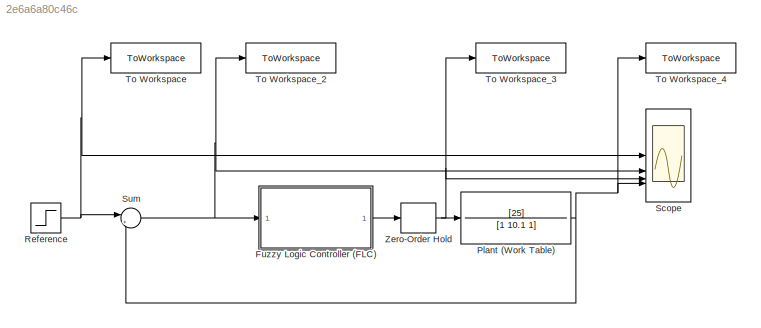
MODEL slx_2e6a6a80c46c
KIND model
CONFIG AbsTol = auto
CONFIG EnableMultiTasking = off
CONFIG FixedStep = auto
CONFIG MaxStep = auto
CONFIG MinStep = auto
CONFIG RelTol = 1e-3
CONFIG SampleTimeConstraint = Unconstrained
CONFIG SolverName = VariableStepAuto
CONFIG StartTime = 0.0
CONFIG StopTime = 10.0
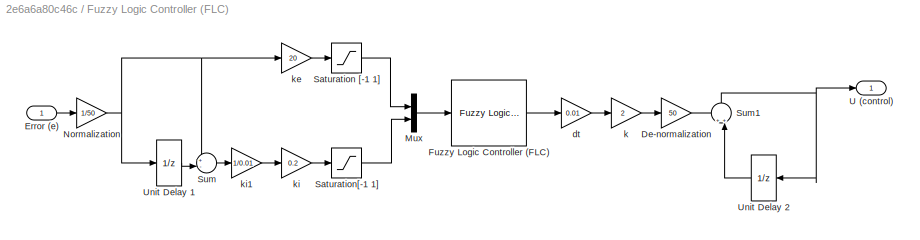
BLOCK [SubSystem] Fuzzy Logic Controller (FLC)
BLOCK [Outport] Fuzzy Logic Controller (FLC)/	U (control)
BLOCK [Gain] Fuzzy Logic Controller (FLC)/De-normalization
  Gain = 50
BLOCK [Inport] Fuzzy Logic Controller (FLC)/Error (e)
BLOCK [Reference] Fuzzy Logic Controller (FLC)/Fuzzy Logic Controller (FLC)  REF=fuzblock/Fuzzy Logic   (lib defined in mdl_858b3b3e7478)
Controller
  SourceBlock = fuzblock/Fuzzy Logic \nController
  SourceType = Fuzzy Inference System
BLOCK [Mux] Fuzzy Logic Controller (FLC)/Mux
  DisplayOption = bar
  Inputs = 2
BLOCK [Gain] Fuzzy Logic Controller (FLC)/Normalization
  Gain = 1/50
BLOCK [Saturate] Fuzzy Logic Controller (FLC)/Saturation [-1 1]
  LowerLimit = -1
  UpperLimit = 1
BLOCK [Saturate] Fuzzy Logic Controller (FLC)/Saturation[-1 1] 
  LowerLimit = -1
  UpperLimit = 1
BLOCK [Sum] Fuzzy Logic Controller (FLC)/Sum
  Inputs = +-|
BLOCK [Sum] Fuzzy Logic Controller (FLC)/Sum1
  Inputs = ++|
  NameLocation = right
BLOCK [UnitDelay] Fuzzy Logic Controller (FLC)/Unit Delay 1
  HasFrameUpgradeWarning = on
  SampleTime = 0.01
BLOCK [UnitDelay] Fuzzy Logic Controller (FLC)/Unit Delay 2
  HasFrameUpgradeWarning = on
  SampleTime = 0.01
BLOCK [Gain] Fuzzy Logic Controller (FLC)/dt
  Gain = 0.01
BLOCK [Gain] Fuzzy Logic Controller (FLC)/k
  Gain = 2
BLOCK [Gain] Fuzzy Logic Controller (FLC)/ke
  Gain = 20
BLOCK [Gain] Fuzzy Logic Controller (FLC)/ki
  Gain = 0.2
BLOCK [Gain] Fuzzy Logic Controller (FLC)/ki1
  Gain = 1/0.01
BLOCK [TransferFcn] Plant (Work Table)
  Denominator = [1 10.1 1]
  Numerator = [25]
BLOCK [Step] Reference
  After = 50
  SampleTime = 0
BLOCK [Scope] Scope 
  Floating = off
  NumInputPorts = 4
  ScopeSpecificationString = Simulink.scopes.TimeScopeBlockCfg('CurrentConfiguration', extmgr.ConfigurationSet(extmgr.Configuration('Core','General UI',true),extmgr.Configuration('Core','Source UI',true),extmgr.Configuration('Sources','WiredSimulink',true),extmgr.Configuration('Visuals','Time Domain',true,'SerializedDisplays',{struct('MinYLimReal','-79.31931','MaxYLimReal','122.90732','YLabelReal','','MinYLimMag','0.00000','M...<+1751ch>
BLOCK [Sum] Sum
  Inputs = |+-
BLOCK [ToWorkspace] To Workspace 
  FixptAsFi = on
  MaxDataPoints = inf
  SampleTime = -1
  SaveFormat = Timeseries
  VariableName = r
BLOCK [ToWorkspace] To Workspace_2
  FixptAsFi = on
  MaxDataPoints = inf
  SampleTime = -1
  SaveFormat = Timeseries
  VariableName = e
BLOCK [ToWorkspace] To Workspace_3
  FixptAsFi = on
  MaxDataPoints = inf
  SampleTime = -1
  SaveFormat = Timeseries
  VariableName = u
BLOCK [ToWorkspace] To Workspace_4
  FixptAsFi = on
  MaxDataPoints = inf
  SampleTime = -1
  SaveFormat = Timeseries
  VariableName = y
BLOCK [ZeroOrderHold] Zero-Order Hold
  SampleTime = -1
LINE Fuzzy Logic Controller (FLC)/De-normalization:1 -> Fuzzy Logic Controller (FLC)/Sum1:1
LINE Fuzzy Logic Controller (FLC)/Error (e):1 -> Fuzzy Logic Controller (FLC)/Normalization:1
LINE Fuzzy Logic Controller (FLC)/Fuzzy Logic Controller (FLC):1 -> Fuzzy Logic Controller (FLC)/dt:1
LINE Fuzzy Logic Controller (FLC)/Mux:1 -> Fuzzy Logic Controller (FLC)/Fuzzy Logic Controller (FLC):1
NET Fuzzy Logic Controller (FLC)/Normalization:1 -> Fuzzy Logic Controller (FLC)/Sum:1, Fuzzy Logic Controller (FLC)/Unit Delay 1:1, Fuzzy Logic Controller (FLC)/ke:1
LINE Fuzzy Logic Controller (FLC)/Saturation [-1 1]:1 -> Fuzzy Logic Controller (FLC)/Mux:1
LINE Fuzzy Logic Controller (FLC)/Saturation[-1 1] :1 -> Fuzzy Logic Controller (FLC)/Mux:2
NET Fuzzy Logic Controller (FLC)/Sum1:1 -> Fuzzy Logic Controller (FLC)/	U (control):1, Fuzzy Logic Controller (FLC)/Unit Delay 2:1
LINE Fuzzy Logic Controller (FLC)/Sum:1 -> Fuzzy Logic Controller (FLC)/ki1:1
LINE Fuzzy Logic Controller (FLC)/Unit Delay 1:1 -> Fuzzy Logic Controller (FLC)/Sum:2
LINE Fuzzy Logic Controller (FLC)/Unit Delay 2:1 -> Fuzzy Logic Controller (FLC)/Sum1:2
LINE Fuzzy Logic Controller (FLC)/dt:1 -> Fuzzy Logic Controller (FLC)/k:1
LINE Fuzzy Logic Controller (FLC)/k:1 -> Fuzzy Logic Controller (FLC)/De-normalization:1
LINE Fuzzy Logic Controller (FLC)/ke:1 -> Fuzzy Logic Controller (FLC)/Saturation [-1 1]:1
LINE Fuzzy Logic Controller (FLC)/ki1:1 -> Fuzzy Logic Controller (FLC)/ki:1
LINE Fuzzy Logic Controller (FLC)/ki:1 -> Fuzzy Logic Controller (FLC)/Saturation[-1 1] :1
LINE Fuzzy Logic Controller (FLC):1 -> Zero-Order Hold:1
NET Plant (Work Table):1 -> Scope :4, Sum:2, To Workspace_4:1
NET Reference:1 -> Scope :1, Sum:1, To Workspace :1
NET Sum:1 -> Fuzzy Logic Controller (FLC):1, Scope :2, To Workspace_2:1
NET Zero-Order Hold:1 -> Plant (Work Table):1, Scope :3, To Workspace_3:1
note: NET lines group one-source signal fan-out (src -> all destinations, sorted); 1:1 wires keep LINE
